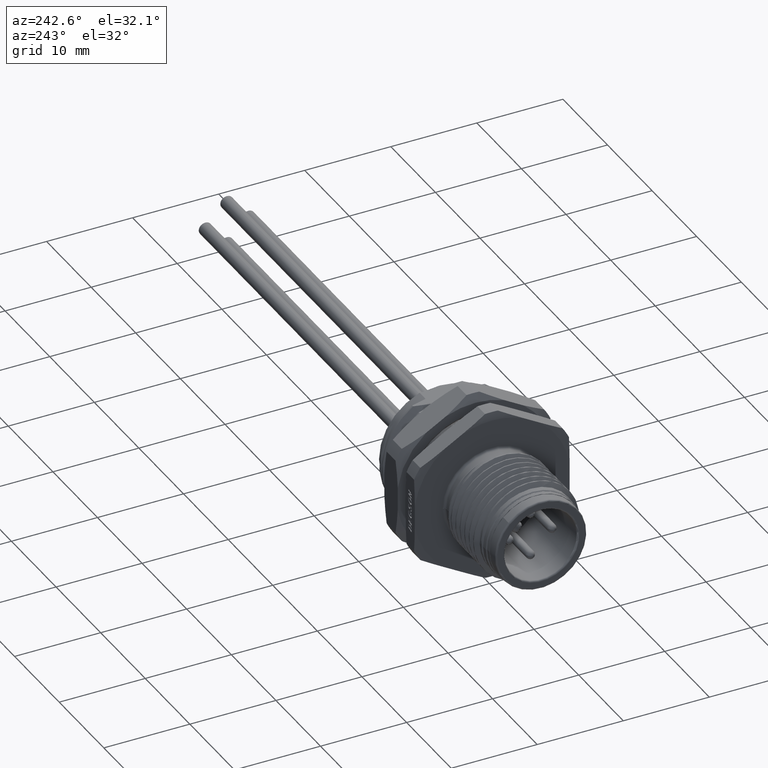
[diagram: clean part render]
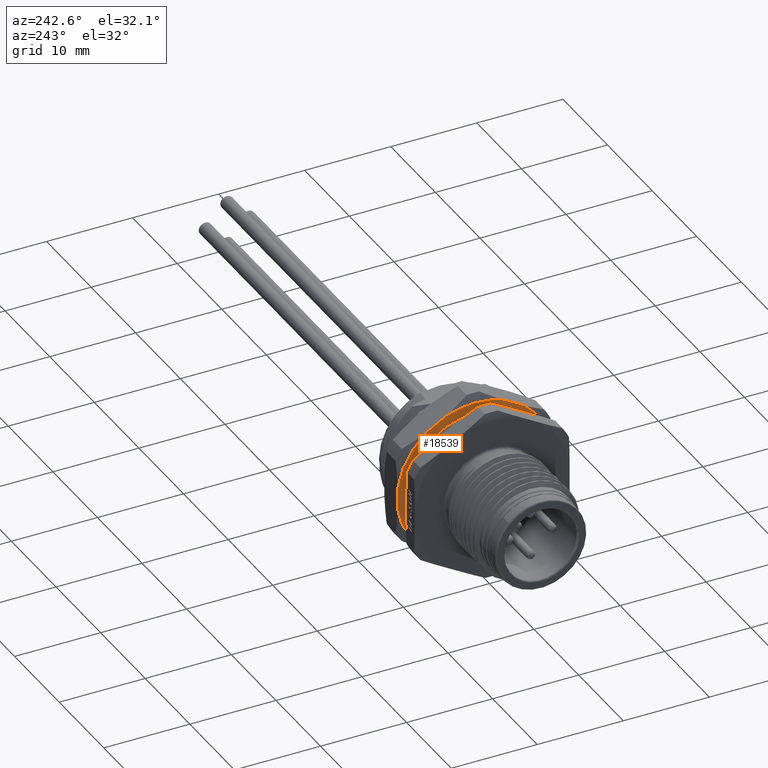
[diagram: same view with one face highlighted and labeled with its STEP entity id]
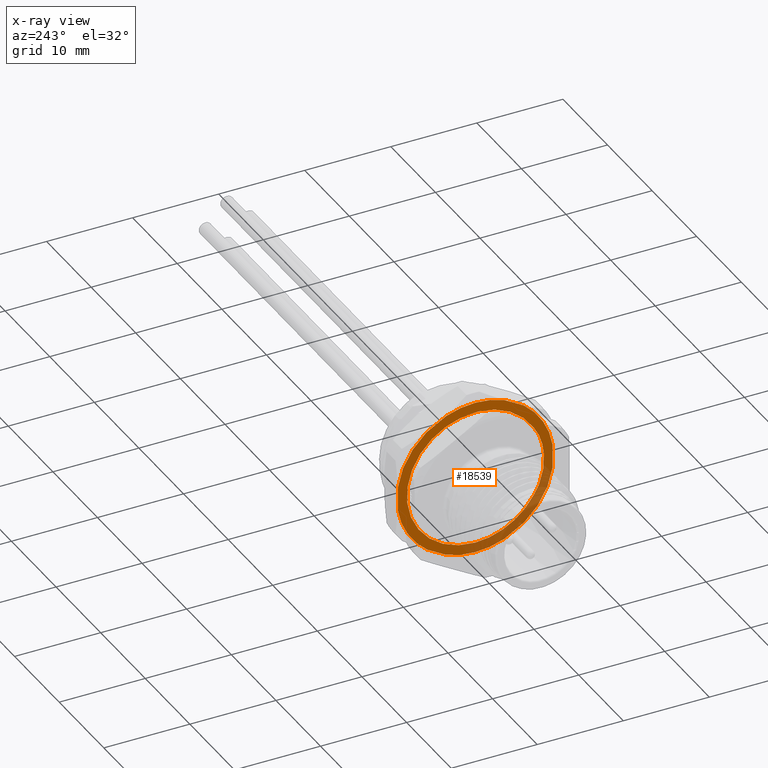
[diagram: x-ray of the same camera — body ghosted, the highlighted face saturated]
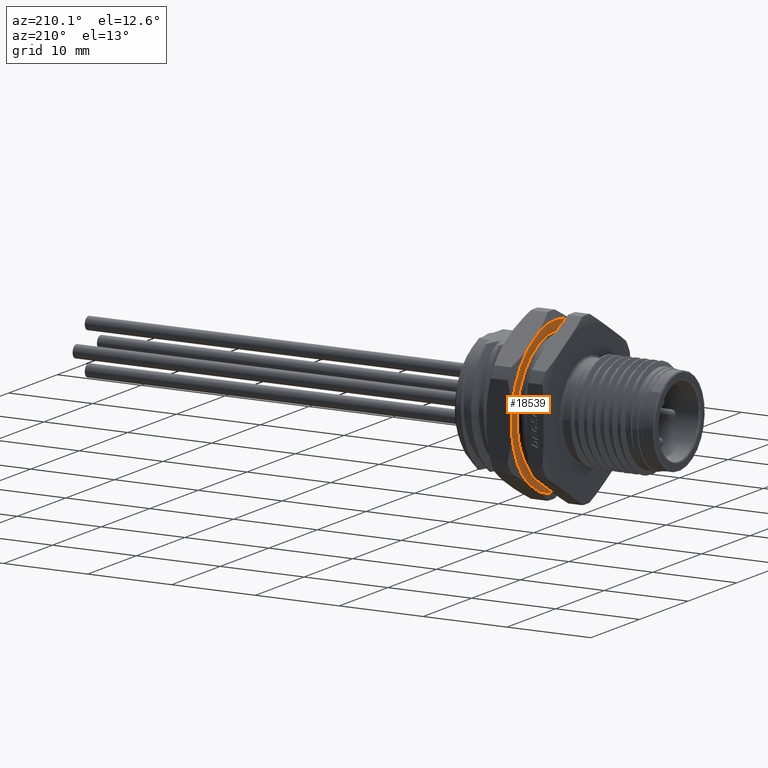
[diagram: same view with one face highlighted and labeled with its STEP entity id]
A machine part, auxiliary view. The second image highlights one B-rep face of the part: STEP entity #18539.
The next image is the same camera in x-ray: the body ghosted, the highlighted face saturated — about 24% of this face is hidden behind the body in this view.
A second angle (auxiliary view) of the same face is appended — the face is thin or edge-on in the first view.
In plain terms, the highlighted planar face has unit normal (1, 0, 0).
Its self-contained STEP definition (entity closure, byte-faithful):
#2651=CARTESIAN_POINT('',(1.319992037564E1,-6.796306355561E0,4.101352842458E0));
#4095=CARTESIAN_POINT('',(1.320004397124E1,-7.391743005003E0,
-3.058563176324E0));
#4167=CARTESIAN_POINT('',(1.32E1,0.E0,0.E0));
#4168=DIRECTION('',(-1.E0,0.E0,0.E0));
#4169=DIRECTION('',(0.E0,-8.561749859403E-1,5.166859717953E-1));
#4170=AXIS2_PLACEMENT_3D('',#4167,#4168,#4169);
#4172=CARTESIAN_POINT('',(1.32E1,0.E0,0.E0));
#4173=DIRECTION('',(-1.E0,0.E0,0.E0));
#4174=DIRECTION('',(0.E0,-3.376846952908E-4,-9.999999429845E-1));
#4175=AXIS2_PLACEMENT_3D('',#4172,#4173,#4174);
#4177=CARTESIAN_POINT('',(1.320000153351E1,-6.799089025896E0,
-4.096861667615E0));
#4178=CARTESIAN_POINT('',(1.320000153351E1,-6.873581806782E0,
-3.986620956055E0));
#4179=CARTESIAN_POINT('',(1.320000514719E1,-7.016781443940E0,
-3.762749836557E0));
#4180=CARTESIAN_POINT('',(1.319997968456E1,-7.214797561841E0,
-3.416158191463E0));
#4181=CARTESIAN_POINT('',(1.320004397124E1,-7.334470829200E0,
-3.179068743418E0));
#4182=CARTESIAN_POINT('',(1.320004397124E1,-7.391743005003E0,
-3.058563176324E0));
#4184=CARTESIAN_POINT('',(1.320004397124E1,-7.391743005003E0,
-3.058563176324E0));
#4185=CARTESIAN_POINT('',(1.320004397124E1,-7.553158096516E0,
-2.668789389481E0));
#4186=CARTESIAN_POINT('',(1.319997988828E1,-7.810731317E0,-1.874048798632E0));
#4187=CARTESIAN_POINT('',(1.320000443417E1,-8.008081574737E0,
-6.270593467871E-1));
#4188=CARTESIAN_POINT('',(1.320000237506E1,-8.007686325511E0,
6.324909011501E-1));
#4189=CARTESIAN_POINT('',(1.319998606559E1,-7.809473998704E0,1.879331387874E0));
#4190=CARTESIAN_POINT('',(1.320003093025E1,-7.551509337872E0,2.673959858814E0));
#4191=CARTESIAN_POINT('',(1.320003093025E1,-7.389784025491E0,3.063600551615E0));
#4193=CARTESIAN_POINT('',(1.320003093025E1,-7.389784025491E0,3.063600551615E0));
#4194=CARTESIAN_POINT('',(1.320003093025E1,-7.332373721077E0,3.184045572825E0));
#4195=CARTESIAN_POINT('',(1.319997494930E1,-7.212583334302E0,3.421062489147E0));
#4196=CARTESIAN_POINT('',(1.320004128207E1,-7.014214312542E0,3.767509145032E0));
#4197=CARTESIAN_POINT('',(1.319992037564E1,-6.870920613621E0,3.991192639393E0));
#4198=CARTESIAN_POINT('',(1.319992037564E1,-6.796306355561E0,4.101352842458E0));
#4200=CARTESIAN_POINT('',(1.32E1,0.E0,1.216804434989E-13));
#4201=DIRECTION('',(-1.E0,0.E0,0.E0));
#4202=DIRECTION('',(0.E0,3.711575756893E-1,-9.285698972121E-1));
#4203=AXIS2_PLACEMENT_3D('',#4200,#4201,#4202);
#4205=DIRECTION('',(0.E0,8.665373526618E-1,4.991122283033E-1));
#4206=VECTOR('',#4205,2.581464112039E0);
#4207=CARTESIAN_POINT('',(1.32E1,3.377533938773E0,-8.449986064630E0));
#4208=LINE('',#4207,#4206);
#4209=CARTESIAN_POINT('',(1.32E1,0.E0,-1.354472090043E-14));
#4210=DIRECTION('',(-1.E0,0.E0,0.E0));
#4211=DIRECTION('',(0.E0,9.890109890110E-1,-1.478420224953E-1));
#4212=AXIS2_PLACEMENT_3D('',#4209,#4210,#4211);
#4214=DIRECTION('',(0.E0,0.E0,1.E0));
#4215=VECTOR('',#4214,2.690724809415E0);
#4216=CARTESIAN_POINT('',(1.32E1,9.E0,-1.345362404707E0));
#4217=LINE('',#4216,#4215);
#4218=CARTESIAN_POINT('',(1.32E1,1.407762795225E-13,8.681944052569E-14));
#4219=DIRECTION('',(-1.E0,0.E0,0.E0));
#4220=DIRECTION('',(0.E0,6.241431362713E-1,7.813100187796E-1));
#4221=AXIS2_PLACEMENT_3D('',#4218,#4219,#4220);
#4223=DIRECTION('',(0.E0,-8.649987779896E-1,5.017739671171E-1));
#4224=VECTOR('',#4223,2.690724809390E0);
#4225=CARTESIAN_POINT('',(1.32E1,5.679702540069E0,7.109921170894E0));
#4226=LINE('',#4225,#4224);
#4227=CARTESIAN_POINT('',(1.32E1,-2.464695114668E-14,-1.305622276959E-13));
#4228=DIRECTION('',(-1.E0,0.E0,0.E0));
#4229=DIRECTION('',(0.E0,-3.711575756893E-1,9.285698972121E-1));
#4230=AXIS2_PLACEMENT_3D('',#4227,#4228,#4229);
#4232=DIRECTION('',(0.E0,-8.665373526618E-1,-4.991122283033E-1));
#4233=VECTOR('',#4232,2.581464112039E0);
#4234=CARTESIAN_POINT('',(1.32E1,-3.377533938773E0,8.449986064630E0));
#4235=LINE('',#4234,#4233);
#4236=CARTESIAN_POINT('',(1.32E1,-1.585398479165E-13,5.861977570021E-14));
#4237=DIRECTION('',(-1.E0,0.E0,0.E0));
#4238=DIRECTION('',(0.E0,-9.890109890110E-1,1.478420224953E-1));
#4239=AXIS2_PLACEMENT_3D('',#4236,#4237,#4238);
#4241=DIRECTION('',(0.E0,0.E0,-1.E0));
#4242=VECTOR('',#4241,2.690724809415E0);
#4243=CARTESIAN_POINT('',(1.32E1,-9.E0,1.345362404707E0));
#4244=LINE('',#4243,#4242);
#4245=CARTESIAN_POINT('',(1.32E1,-2.096101070492E-13,-1.314504061156E-13));
#4246=DIRECTION('',(-1.E0,0.E0,0.E0));
#4247=DIRECTION('',(0.E0,-6.241431362713E-1,-7.813100187796E-1));
#4248=AXIS2_PLACEMENT_3D('',#4245,#4246,#4247);
#4250=DIRECTION('',(0.E0,8.649987779896E-1,-5.017739671171E-1));
#4251=VECTOR('',#4250,2.690724809390E0);
#4252=CARTESIAN_POINT('',(1.32E1,-5.679702540069E0,-7.109921170894E0));
#4253=LINE('',#4252,#4251);
#4254=CARTESIAN_POINT('',(1.32E1,-3.352228868041E0,-8.460056832922E0));
#4265=CARTESIAN_POINT('',(1.32E1,-5.679702540069E0,-7.109921170894E0));
#4280=CARTESIAN_POINT('',(1.32E1,-9.E0,-1.345362404707E0));
#4291=CARTESIAN_POINT('',(1.32E1,-9.E0,1.345362404707E0));
#4311=CARTESIAN_POINT('',(1.32E1,-3.377533938773E0,8.449986064630E0));
#4327=CARTESIAN_POINT('',(1.32E1,-5.614469016411E0,7.161545759385E0));
#4339=CARTESIAN_POINT('',(1.32E1,5.679702540069E0,7.109921170894E0));
#4354=CARTESIAN_POINT('',(1.32E1,3.352228868041E0,8.460056832922E0));
#4364=CARTESIAN_POINT('',(1.32E1,9.E0,-1.345362404707E0));
#4379=CARTESIAN_POINT('',(1.32E1,9.E0,1.345362404707E0));
#4391=CARTESIAN_POINT('',(1.32E1,3.377533938773E0,-8.449986064630E0));
#4407=CARTESIAN_POINT('',(1.32E1,5.614469016410E0,-7.161545759385E0));
#12910=VERTEX_POINT('',#2651);
#12911=VERTEX_POINT('',#4193);
#12985=CARTESIAN_POINT('',(1.32E1,-2.681457785182E-3,-7.937999547100E0));
#12986=VERTEX_POINT('',#12985);
#12991=VERTEX_POINT('',#4095);
#12992=VERTEX_POINT('',#4177);
#14565=VERTEX_POINT('',#4254);
#14569=VERTEX_POINT('',#4391);
#14570=VERTEX_POINT('',#4407);
#14574=VERTEX_POINT('',#4364);
#14575=VERTEX_POINT('',#4379);
#14579=VERTEX_POINT('',#4339);
#14580=VERTEX_POINT('',#4354);
#14584=VERTEX_POINT('',#4311);
#14585=VERTEX_POINT('',#4280);
#14589=VERTEX_POINT('',#4265);
#14590=VERTEX_POINT('',#4327);
#14594=VERTEX_POINT('',#4291);
#18500=CARTESIAN_POINT('',(1.32E1,4.438436335796E-6,-1.498792107134E-9));
#18501=DIRECTION('',(1.E0,0.E0,0.E0));
#18502=DIRECTION('',(0.E0,9.999999429845E-1,-3.376846952991E-4));
#18503=AXIS2_PLACEMENT_3D('',#18500,#18501,#18502);
#18504=PLANE('',#18503);
#18506=ORIENTED_EDGE('',*,*,#18505,.F.);
#18508=ORIENTED_EDGE('',*,*,#18507,.T.);
#18510=ORIENTED_EDGE('',*,*,#18509,.F.);
#18512=ORIENTED_EDGE('',*,*,#18511,.T.);
#18514=ORIENTED_EDGE('',*,*,#18513,.F.);
#18516=ORIENTED_EDGE('',*,*,#18515,.T.);
#18518=ORIENTED_EDGE('',*,*,#18517,.F.);
#18520=ORIENTED_EDGE('',*,*,#18519,.T.);
#18522=ORIENTED_EDGE('',*,*,#18521,.F.);
#18524=ORIENTED_EDGE('',*,*,#18523,.T.);
#18526=ORIENTED_EDGE('',*,*,#18525,.F.);
#18528=ORIENTED_EDGE('',*,*,#18527,.T.);
#18529=EDGE_LOOP('',(#18506,#18508,#18510,#18512,#18514,#18516,#18518,#18520,
#18522,#18524,#18526,#18528));
#18530=FACE_OUTER_BOUND('',#18529,.F.);
#18531=ORIENTED_EDGE('',*,*,#16735,.T.);
#18533=ORIENTED_EDGE('',*,*,#18532,.T.);
#18534=ORIENTED_EDGE('',*,*,#16904,.T.);
#18535=ORIENTED_EDGE('',*,*,#18493,.T.);
#18536=ORIENTED_EDGE('',*,*,#16510,.T.);
#18537=EDGE_LOOP('',(#18531,#18533,#18534,#18535,#18536));
#18538=FACE_BOUND('',#18537,.F.);
#18539=ADVANCED_FACE('',(#18530,#18538),#18504,.F.);
#4171=CIRCLE('',#4170,7.937999999999E0);
#4176=CIRCLE('',#4175,7.937999999997E0);
#4183=B_SPLINE_CURVE_WITH_KNOTS('',3,(#4177,#4178,#4179,#4180,#4181,#4182),
.UNSPECIFIED.,.F.,.F.,(4,1,1,4),(0.E0,3.333333333333E-1,6.666666666667E-1,1.E0),
.UNSPECIFIED.);
#4192=B_SPLINE_CURVE_WITH_KNOTS('',3,(#4184,#4185,#4186,#4187,#4188,#4189,#4190,
#4191),.UNSPECIFIED.,.F.,.F.,(4,1,1,1,1,4),(0.E0,2.E-1,4.E-1,6.E-1,8.E-1,1.E0),
.UNSPECIFIED.);
#4199=B_SPLINE_CURVE_WITH_KNOTS('',3,(#4193,#4194,#4195,#4196,#4197,#4198),
.UNSPECIFIED.,.F.,.F.,(4,1,1,4),(0.E0,3.333333333333E-1,6.666666666667E-1,1.E0),
.UNSPECIFIED.);
#4204=CIRCLE('',#4203,9.1E0);
#4213=CIRCLE('',#4212,9.1E0);
#4222=CIRCLE('',#4221,9.1E0);
#4231=CIRCLE('',#4230,9.1E0);
#4240=CIRCLE('',#4239,9.1E0);
#4249=CIRCLE('',#4248,9.1E0);
#16510=EDGE_CURVE('',#12911,#12910,#4199,.T.);
#16735=EDGE_CURVE('',#12910,#12986,#4171,.T.);
#16904=EDGE_CURVE('',#12992,#12991,#4183,.T.);
#18493=EDGE_CURVE('',#12991,#12911,#4192,.T.);
#18505=EDGE_CURVE('',#14569,#14565,#4204,.T.);
#18507=EDGE_CURVE('',#14569,#14570,#4208,.T.);
#18509=EDGE_CURVE('',#14574,#14570,#4213,.T.);
#18511=EDGE_CURVE('',#14574,#14575,#4217,.T.);
#18513=EDGE_CURVE('',#14579,#14575,#4222,.T.);
#18515=EDGE_CURVE('',#14579,#14580,#4226,.T.);
#18517=EDGE_CURVE('',#14584,#14580,#4231,.T.);
#18519=EDGE_CURVE('',#14584,#14590,#4235,.T.);
#18521=EDGE_CURVE('',#14594,#14590,#4240,.T.);
#18523=EDGE_CURVE('',#14594,#14585,#4244,.T.);
#18525=EDGE_CURVE('',#14589,#14585,#4249,.T.);
#18527=EDGE_CURVE('',#14589,#14565,#4253,.T.);
#18532=EDGE_CURVE('',#12986,#12992,#4176,.T.);